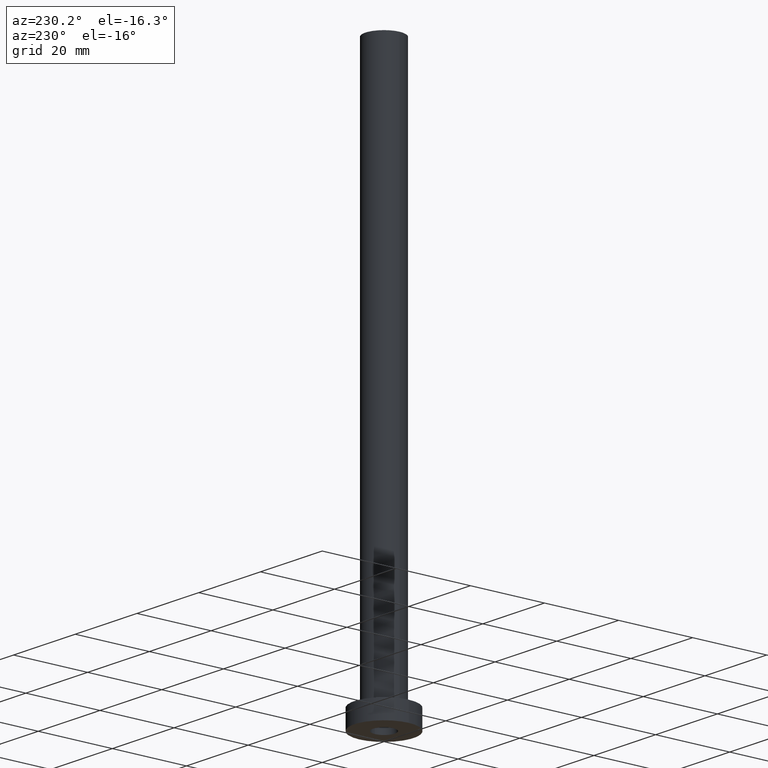
[diagram: clean part render]
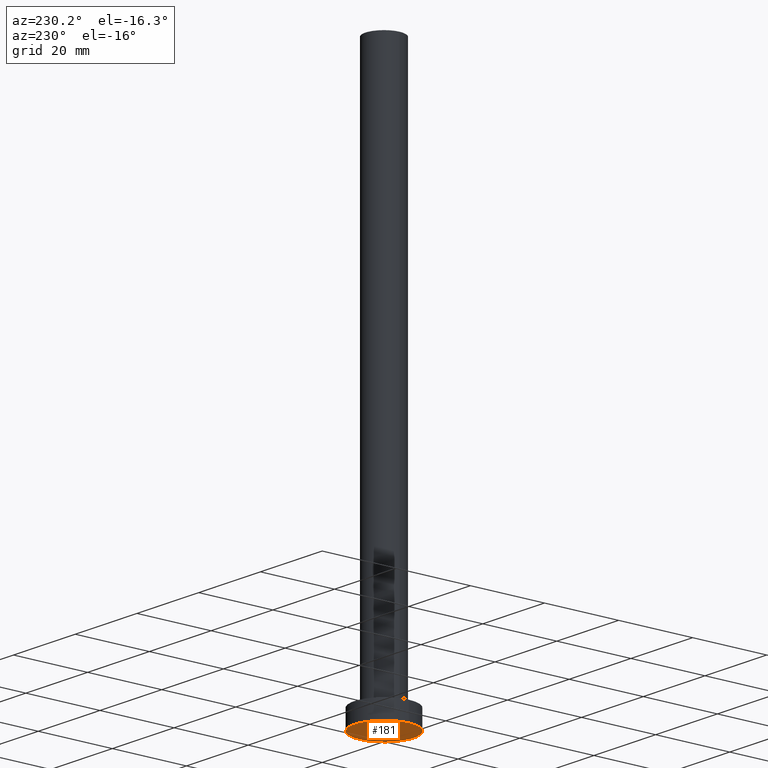
[diagram: same view with one face highlighted and labeled with its STEP entity id]
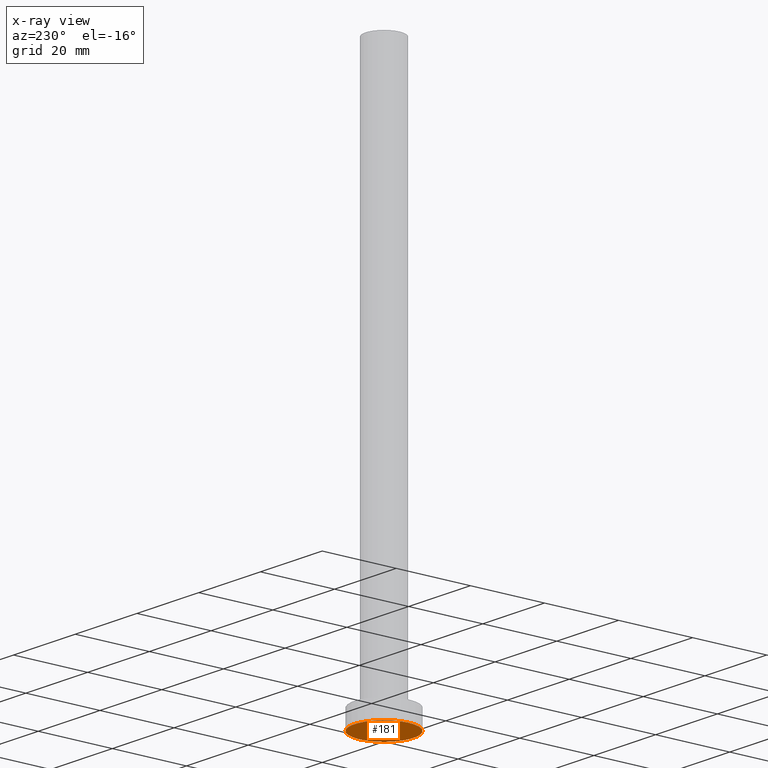
[diagram: x-ray of the same camera — body ghosted, the highlighted face saturated]
A machine part, auxiliary view. The second image highlights one B-rep face of the part: STEP entity #181.
The next image is the same camera in x-ray: the body ghosted, the highlighted face saturated — about 0% of this face is hidden behind the body in this view.
In plain terms, the highlighted planar face has unit normal (0, 0, 1).
Its self-contained STEP definition (entity closure, byte-faithful):
#12 = DIRECTION ( 'NONE',  ( 1.000000000000000000, 0.000000000000000000, 0.000000000000000000 ) ) ;
#18 = AXIS2_PLACEMENT_3D ( 'NONE', #442, #165, #125 ) ;
#21 = AXIS2_PLACEMENT_3D ( 'NONE', #323, #148, #81 ) ;
#35 = EDGE_LOOP ( 'NONE', ( #349, #422 ) ) ;
#38 = ORIENTED_EDGE ( 'NONE', *, *, #114, .F. ) ;
#49 = EDGE_LOOP ( 'NONE', ( #38, #99 ) ) ;
#51 = EDGE_CURVE ( 'NONE', #459, #334, #425, .T. ) ;
#54 = FACE_OUTER_BOUND ( 'NONE', #35, .T. ) ;
#81 = DIRECTION ( 'NONE',  ( 1.000000000000000000, 0.000000000000000000, 0.000000000000000000 ) ) ;
#82 = EDGE_CURVE ( 'NONE', #322, #319, #295, .T. ) ;
#91 = AXIS2_PLACEMENT_3D ( 'NONE', #209, #100, #273 ) ;
#99 = ORIENTED_EDGE ( 'NONE', *, *, #51, .F. ) ;
#100 = DIRECTION ( 'NONE',  ( 0.000000000000000000, 0.000000000000000000, 1.000000000000000000 ) ) ;
#111 = CIRCLE ( 'NONE', #91, 8.000000000000000000 ) ;
#114 = EDGE_CURVE ( 'NONE', #334, #459, #427, .T. ) ;
#125 = DIRECTION ( 'NONE',  ( 1.000000000000000000, 0.000000000000000000, -0.000000000000000000 ) ) ;
#148 = DIRECTION ( 'NONE',  ( -0.000000000000000000, -0.000000000000000000, -1.000000000000000000 ) ) ;
#165 = DIRECTION ( 'NONE',  ( 0.000000000000000000, 0.000000000000000000, 1.000000000000000000 ) ) ;
#181 = ADVANCED_FACE ( 'NONE', ( #199, #54 ), #369, .F. ) ;
#199 = FACE_BOUND ( 'NONE', #49, .T. ) ;
#209 = CARTESIAN_POINT ( 'NONE',  ( 0.000000000000000000, 0.000000000000000000, 0.000000000000000000 ) ) ;
#229 = DIRECTION ( 'NONE',  ( 0.000000000000000000, 0.000000000000000000, 1.000000000000000000 ) ) ;
#244 = DIRECTION ( 'NONE',  ( -0.000000000000000000, -0.000000000000000000, -1.000000000000000000 ) ) ;
#273 = DIRECTION ( 'NONE',  ( 1.000000000000000000, 0.000000000000000000, 0.000000000000000000 ) ) ;
#275 = AXIS2_PLACEMENT_3D ( 'NONE', #428, #229, #12 ) ;
#278 = CARTESIAN_POINT ( 'NONE',  ( 8.000000000000000000, 9.797174393178825657E-16, 0.000000000000000000 ) ) ;
#285 = DIRECTION ( 'NONE',  ( 1.000000000000000000, 0.000000000000000000, 0.000000000000000000 ) ) ;
#295 = CIRCLE ( 'NONE', #275, 8.000000000000000000 ) ;
#297 = AXIS2_PLACEMENT_3D ( 'NONE', #350, #244, #285 ) ;
#319 = VERTEX_POINT ( 'NONE', #278 ) ;
#322 = VERTEX_POINT ( 'NONE', #419 ) ;
#323 = CARTESIAN_POINT ( 'NONE',  ( 0.000000000000000000, 0.000000000000000000, 0.000000000000000000 ) ) ;
#334 = VERTEX_POINT ( 'NONE', #381 ) ;
#349 = ORIENTED_EDGE ( 'NONE', *, *, #82, .F. ) ;
#350 = CARTESIAN_POINT ( 'NONE',  ( 0.000000000000000000, 0.000000000000000000, 0.000000000000000000 ) ) ;
#369 = PLANE ( 'NONE',  #18 ) ;
#381 = CARTESIAN_POINT ( 'NONE',  ( -2.899999999999999911, 0.000000000000000000, 0.000000000000000000 ) ) ;
#405 = EDGE_CURVE ( 'NONE', #319, #322, #111, .T. ) ;
#419 = CARTESIAN_POINT ( 'NONE',  ( -8.000000000000000000, 0.000000000000000000, 0.000000000000000000 ) ) ;
#422 = ORIENTED_EDGE ( 'NONE', *, *, #405, .F. ) ;
#425 = CIRCLE ( 'NONE', #21, 2.899999999999999911 ) ;
#427 = CIRCLE ( 'NONE', #297, 2.899999999999999911 ) ;
#428 = CARTESIAN_POINT ( 'NONE',  ( 0.000000000000000000, 0.000000000000000000, 0.000000000000000000 ) ) ;
#442 = CARTESIAN_POINT ( 'NONE',  ( 0.000000000000000000, 0.000000000000000000, 0.000000000000000000 ) ) ;
#457 = CARTESIAN_POINT ( 'NONE',  ( 2.899999999999999911, 3.551475717527323832E-16, 0.000000000000000000 ) ) ;
#459 = VERTEX_POINT ( 'NONE', #457 ) ;